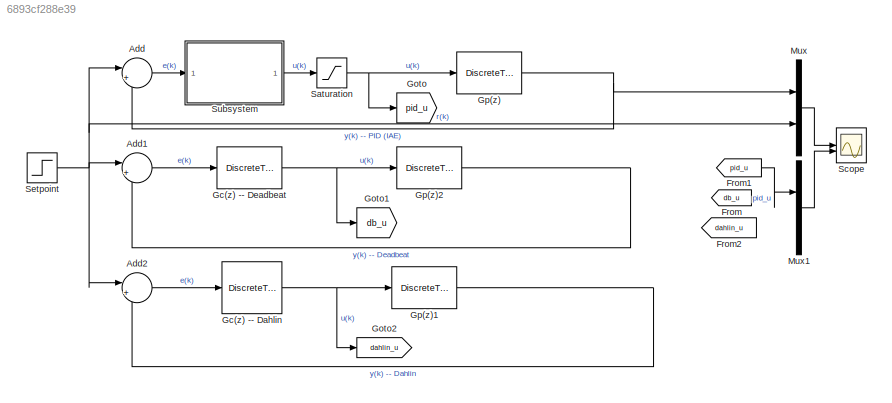
MODEL slx_6893cf288e39
KIND model
CONFIG AbsTol = auto
CONFIG EnableMultiTasking = off
CONFIG FixedStep = auto
CONFIG MaxStep = auto
CONFIG MinStep = auto
CONFIG RelTol = 1e-3
CONFIG SampleTimeConstraint = Unconstrained
CONFIG SolverName = VariableStepAuto
CONFIG StartTime = 0.0
CONFIG StopTime = 10
BLOCK [Sum] Add
  Inputs = |+-
BLOCK [Sum] Add1
  Commented = on
  Inputs = |+-
BLOCK [Sum] Add2
  Commented = on
  Inputs = |+-
BLOCK [From] From
  Commented = on
  GotoTag = db_u
BLOCK [From] From1
  GotoTag = pid_u
BLOCK [From] From2
  Commented = on
  GotoTag = dahlin_u
BLOCK [DiscreteTransferFcn] Gc(z) -- Dahlin
  Commented = on
  Denominator = Gcz_den_dahlin
  InputPortMap = u0
  Numerator = Gcz_num_dahlin
  SampleTime = T
BLOCK [DiscreteTransferFcn] Gc(z) -- Deadbeat
  Commented = on
  Denominator = Gcz_db_den
  InputPortMap = u0
  Numerator = Gcz_db_num
  SampleTime = T
BLOCK [Goto] Goto
  GotoTag = pid_u
BLOCK [Goto] Goto1
  Commented = on
  GotoTag = db_u
BLOCK [Goto] Goto2
  Commented = on
  GotoTag = dahlin_u
BLOCK [DiscreteTransferFcn] Gp(z)
  Denominator = Gpz_den
  InputPortMap = u0
  Numerator = Gpz_num
  SampleTime = T
BLOCK [DiscreteTransferFcn] Gp(z)1
  Commented = on
  Denominator = Gpz_den
  InputPortMap = u0
  Numerator = Gpz_num
  SampleTime = T
BLOCK [DiscreteTransferFcn] Gp(z)2
  Commented = on
  Denominator = Gpz_den
  InputPortMap = u0
  Numerator = Gpz_num
  SampleTime = T
BLOCK [Mux] Mux
  DisplayOption = bar
  Inputs = 2
BLOCK [Mux] Mux1
  DisplayOption = bar
  Inputs = 1
BLOCK [Saturate] Saturation
  LowerLimit = 0
  UpperLimit = 255
BLOCK [Scope] Scope
  Floating = off
  NumInputPorts = 2
  ScopeSpecificationString = Simulink.scopes.TimeScopeBlockCfg('CurrentConfiguration', extmgr.ConfigurationSet(extmgr.Configuration('Core','General UI',true),extmgr.Configuration('Core','Source UI',true),extmgr.Configuration('Sources','WiredSimulink',true),extmgr.Configuration('Visuals','Time Domain',true,'SerializedDisplays',{struct('MinYLimReal','-0.38296','MaxYLimReal','3.44666','YLabelReal','','MinYLimMag','0.00000','MaxY...<+2482ch>
BLOCK [Step] Setpoint
  After = 2
  SampleTime = T
  Time = .05
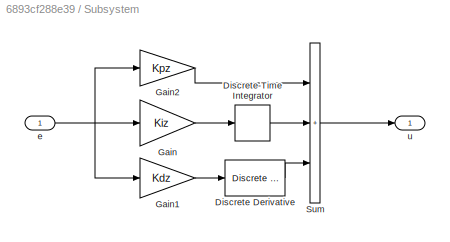
BLOCK [SubSystem] Subsystem
BLOCK [Reference] Subsystem/Discrete Derivative  REF=simulink/Discrete/Discrete Derivative
  SourceBlock = simulink/Discrete/Discrete Derivative
  SourceType = Discrete Derivative
BLOCK [DiscreteIntegrator] Subsystem/Discrete-Time Integrator
  ICPrevOutput = DiscIntNeverNeededParam
  ICPrevScaledInput = DiscIntNeverNeededParam
  InitialConditionSetting = Auto
  SampleTime = T
BLOCK [Gain] Subsystem/Gain
  Gain = Kiz
BLOCK [Gain] Subsystem/Gain1
  Gain = Kdz
BLOCK [Gain] Subsystem/Gain2
  Gain = Kpz
BLOCK [Sum] Subsystem/Sum
  IconShape = rectangular
  Inputs = +++
BLOCK [Inport] Subsystem/e
BLOCK [Outport] Subsystem/u
LINE Add1:1 -> Gc(z) -- Deadbeat:1
LINE Add2:1 -> Gc(z) -- Dahlin:1
LINE Add:1 -> Subsystem:1
LINE From1:1 -> Mux1:1
NET Gc(z) -- Dahlin:1 -> Goto2:1, Gp(z)1:1
NET Gc(z) -- Deadbeat:1 -> Goto1:1, Gp(z)2:1
LINE Gp(z)1:1 -> Add2:2
LINE Gp(z)2:1 -> Add1:2
NET Gp(z):1 -> Add:2, Mux:1
LINE Mux1:1 -> Scope:2
LINE Mux:1 -> Scope:1
NET Saturation:1 -> Goto:1, Gp(z):1
NET Setpoint:1 -> Add1:1, Add2:1, Add:1, Mux:2
LINE Subsystem/Discrete Derivative:1 -> Subsystem/Sum:3
LINE Subsystem/Discrete-Time Integrator:1 -> Subsystem/Sum:2
LINE Subsystem/Gain1:1 -> Subsystem/Discrete Derivative:1
LINE Subsystem/Gain2:1 -> Subsystem/Sum:1
LINE Subsystem/Gain:1 -> Subsystem/Discrete-Time Integrator:1
LINE Subsystem/Sum:1 -> Subsystem/u:1
NET Subsystem/e:1 -> Subsystem/Gain1:1, Subsystem/Gain2:1, Subsystem/Gain:1
LINE Subsystem:1 -> Saturation:1
note: NET lines group one-source signal fan-out (src -> all destinations, sorted); 1:1 wires keep LINE
